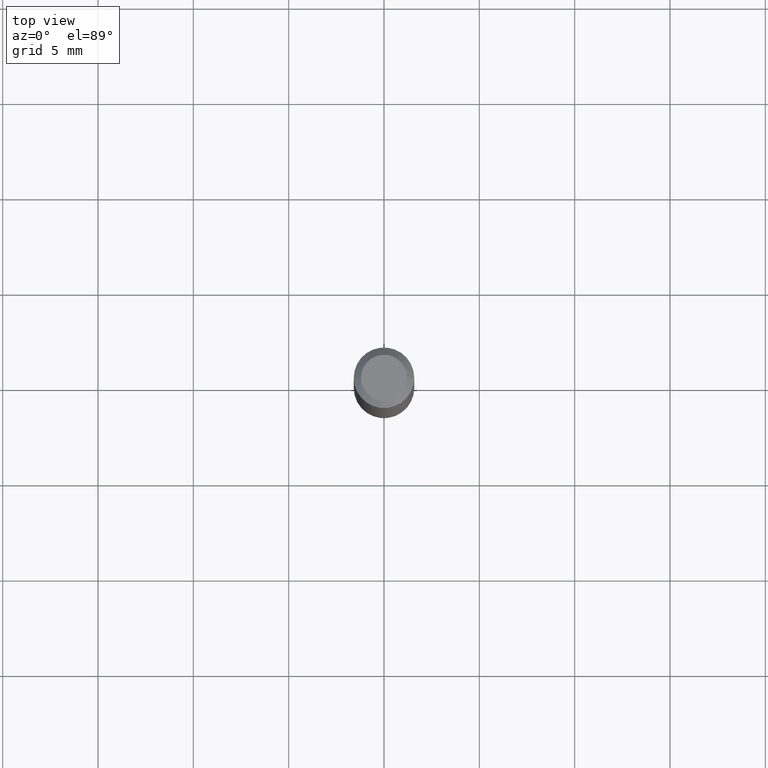
[diagram: clean part render]
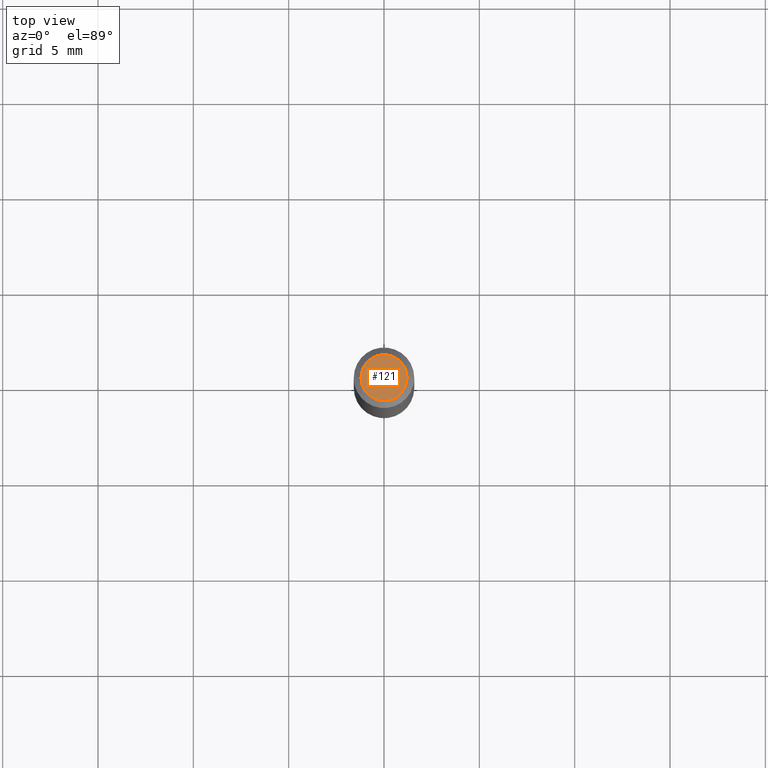
[diagram: same view with one face highlighted and labeled with its STEP entity id]
A machine part, top view. The second image highlights one B-rep face of the part: STEP entity #121.
In plain terms, the highlighted planar face has unit normal (0, -0, -1).
Its self-contained STEP definition (entity closure, byte-faithful):
#29 = CARTESIAN_POINT ( 'NONE',  ( -0.04750000000000000749, 3.578768372314221353E-16, 2.731847993664239060E-16 ) ) ;
#68 = FACE_OUTER_BOUND ( 'NONE', #77, .T. ) ;
#77 = EDGE_LOOP ( 'NONE', ( #479, #117 ) ) ;
#83 = DIRECTION ( 'NONE',  ( -2.445468806185136597E-29, 3.491481338843145583E-15, 1.000000000000000000 ) ) ;
#84 = VERTEX_POINT ( 'NONE', #29 ) ;
#95 = DIRECTION ( 'NONE',  ( -1.000000000000000000, 6.982962677686265922E-15, -4.876176775795935793E-29 ) ) ;
#117 = ORIENTED_EDGE ( 'NONE', *, *, #422, .T. ) ;
#121 = ADVANCED_FACE ( 'NONE', ( #68 ), #189, .F. ) ;
#149 = VERTEX_POINT ( 'NONE', #394 ) ;
#150 = CIRCLE ( 'NONE', #329, 0.04750000000000000749 ) ;
#164 = DIRECTION ( 'NONE',  ( 1.000000000000000000, -6.982962677686266711E-15, 4.852736867747365086E-29 ) ) ;
#167 = CIRCLE ( 'NONE', #508, 0.04750000000000000749 ) ;
#189 = PLANE ( 'NONE',  #291 ) ;
#250 = CARTESIAN_POINT ( 'NONE',  ( -6.680649051745406845E-45, 9.538196290434862081E-31, 2.731847993664263218E-16 ) ) ;
#291 = AXIS2_PLACEMENT_3D ( 'NONE', #358, #391, #95 ) ;
#329 = AXIS2_PLACEMENT_3D ( 'NONE', #250, #83, #496 ) ;
#340 = DIRECTION ( 'NONE',  ( -2.445468806185136597E-29, 3.491481338843145583E-15, 1.000000000000000000 ) ) ;
#358 = CARTESIAN_POINT ( 'NONE',  ( 3.316907271900976589E-16, 0.04750000000000000749, -2.925296391183627249E-17 ) ) ;
#391 = DIRECTION ( 'NONE',  ( 2.438088387897960049E-29, -3.491481338843145188E-15, -1.000000000000000000 ) ) ;
#394 = CARTESIAN_POINT ( 'NONE',  ( 0.04750000000000000749, -4.035134999187568762E-16, 2.731847993664288856E-16 ) ) ;
#422 = EDGE_CURVE ( 'NONE', #149, #84, #150, .T. ) ;
#469 = EDGE_CURVE ( 'NONE', #84, #149, #167, .T. ) ;
#479 = ORIENTED_EDGE ( 'NONE', *, *, #469, .T. ) ;
#491 = CARTESIAN_POINT ( 'NONE',  ( -6.680649051745406845E-45, 9.538196290434862081E-31, 2.731847993664263218E-16 ) ) ;
#496 = DIRECTION ( 'NONE',  ( 1.000000000000000000, -6.982962677686266711E-15, 4.852736867747365086E-29 ) ) ;
#508 = AXIS2_PLACEMENT_3D ( 'NONE', #491, #340, #164 ) ;